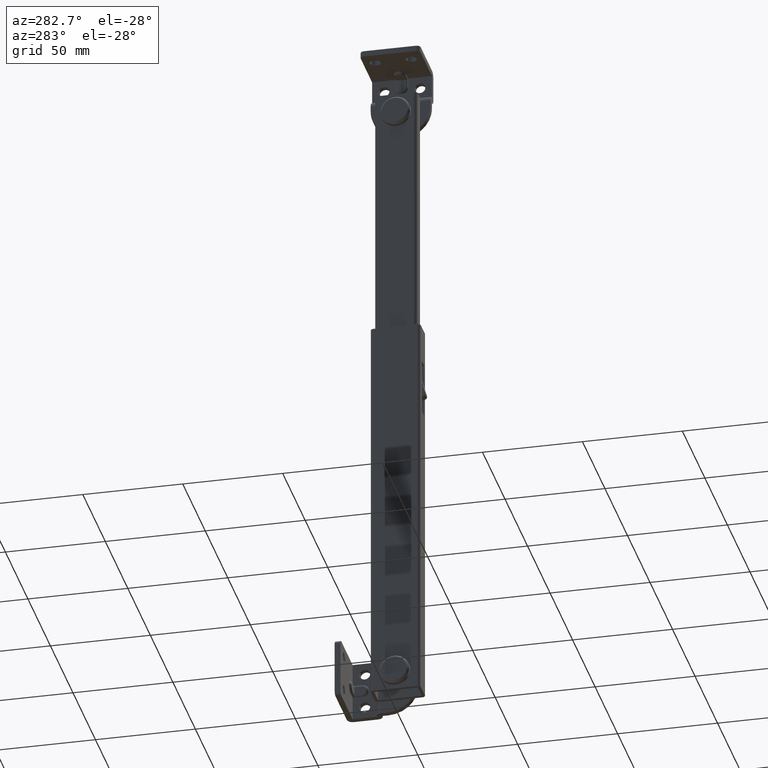
[diagram: clean part render]
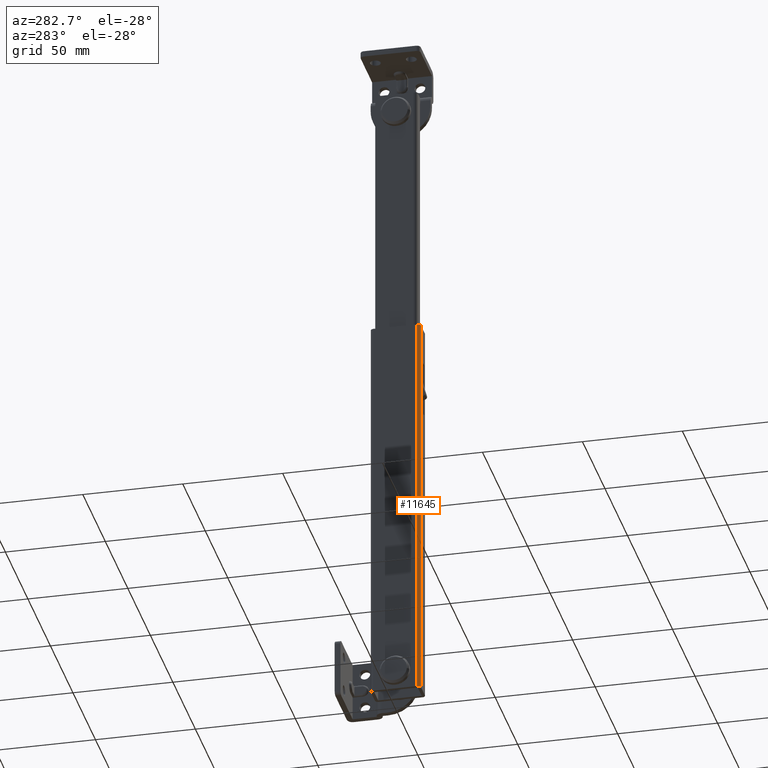
[diagram: same view with one face highlighted and labeled with its STEP entity id]
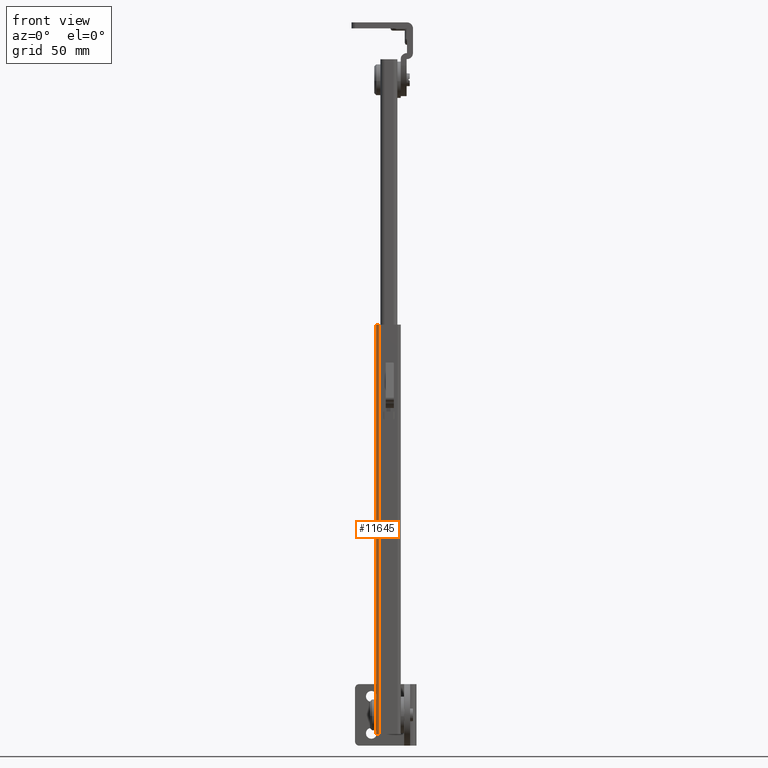
[diagram: same view with one face highlighted and labeled with its STEP entity id]
A machine part, auxiliary view. The second image highlights one B-rep face of the part: STEP entity #11645.
A second angle (front view) of the same face is appended — the face is thin or edge-on in the first view.
In plain terms, the highlighted face is a freeform B-spline surface patch.
Its self-contained STEP definition (entity closure, byte-faithful):
#11366=CARTESIAN_POINT('',(1.597476178661950,-12.500000000000000,190.500000000000000));
#11367=VERTEX_POINT('',#11366);
#11436=CARTESIAN_POINT('',(0.0,-10.900002000000001,190.500000000000000));
#11437=VERTEX_POINT('',#11436);
#11443=CARTESIAN_POINT('',(0.0,-10.900002000000001,190.500000000000000));
#11444=CARTESIAN_POINT('',(0.000003000000000,-12.497474175502171,190.500000000000060));
#11445=CARTESIAN_POINT('',(1.597476178661950,-12.500000000000000,190.500000000000000));
#11453=(BOUNDED_CURVE()B_SPLINE_CURVE(2,(#11443,#11444,#11445),.UNSPECIFIED.,.F.,.U.)CURVE()GEOMETRIC_REPRESENTATION_ITEM()QUASI_UNIFORM_CURVE()RATIONAL_B_SPLINE_CURVE((1.0,0.707665577210126,1.0))REPRESENTATION_ITEM(''));
#11454=EDGE_CURVE('',#11437,#11367,#11453,.T.);
#11494=CARTESIAN_POINT('',(1.597476178661950,-12.500000000000000,-9.500000000000000));
#11495=VERTEX_POINT('',#11494);
#11503=CARTESIAN_POINT('',(0.0,-10.900002000000001,-9.500000000000000));
#11504=VERTEX_POINT('',#11503);
#11505=CARTESIAN_POINT('',(0.0,-10.900002000000001,-9.500000000000000));
#11506=CARTESIAN_POINT('',(0.000003000000000,-12.497474175502171,-9.500000000000000));
#11507=CARTESIAN_POINT('',(1.597476178661950,-12.500000000000000,-9.500000000000000));
#11515=(BOUNDED_CURVE()B_SPLINE_CURVE(2,(#11505,#11506,#11507),.UNSPECIFIED.,.F.,.U.)CURVE()GEOMETRIC_REPRESENTATION_ITEM()QUASI_UNIFORM_CURVE()RATIONAL_B_SPLINE_CURVE((1.0,0.707665577210126,1.0))REPRESENTATION_ITEM(''));
#11516=EDGE_CURVE('',#11504,#11495,#11515,.T.);
#11617=CARTESIAN_POINT('',(1.611438714334121,-12.499961153554541,-14.500000000000011));
#11618=CARTESIAN_POINT('',(1.611438714334121,-12.499961153554541,195.625000000000000));
#11619=CARTESIAN_POINT('',(-0.074566442943002,-12.512008720697851,-14.500000000000011));
#11620=CARTESIAN_POINT('',(-0.074566442943002,-12.512008720697851,195.625000000000030));
#11621=CARTESIAN_POINT('',(0.001641192822378,-10.827683653945540,-14.500000000000011));
#11622=CARTESIAN_POINT('',(0.001641192822378,-10.827683653945540,195.625000000000000));
#11630=(BOUNDED_SURFACE()B_SPLINE_SURFACE(1,2,((#11617,#11619,#11621),(#11618,#11620,#11622)),.UNSPECIFIED.,.F.,.F.,.U.)B_SPLINE_SURFACE_WITH_KNOTS((2,2),(3,3),(0.0,210.125000000000000),(0.0,2.749656998187751),.UNSPECIFIED.)GEOMETRIC_REPRESENTATION_ITEM()RATIONAL_B_SPLINE_SURFACE(((1.0,0.688354575693754,1.0),(1.0,0.688354575693754,1.0)))REPRESENTATION_ITEM('')SURFACE());
#11631=ORIENTED_EDGE('',*,*,#11454,.F.);
#11632=CARTESIAN_POINT('',(0.0,-10.900002000000001,-9.500000000000000));
#11633=CARTESIAN_POINT('',(0.0,-10.900002000000001,190.500000000000000));
#11634=QUASI_UNIFORM_CURVE('',1,(#11632,#11633),.UNSPECIFIED.,.F.,.U.);
#11635=EDGE_CURVE('',#11504,#11437,#11634,.T.);
#11636=ORIENTED_EDGE('',*,*,#11635,.F.);
#11637=ORIENTED_EDGE('',*,*,#11516,.T.);
#11638=CARTESIAN_POINT('',(1.597476178661950,-12.500000000000000,-9.500000000000000));
#11639=CARTESIAN_POINT('',(1.597476178661950,-12.500000000000000,190.500000000000000));
#11640=QUASI_UNIFORM_CURVE('',1,(#11638,#11639),.UNSPECIFIED.,.F.,.U.);
#11641=EDGE_CURVE('',#11495,#11367,#11640,.T.);
#11642=ORIENTED_EDGE('',*,*,#11641,.T.);
#11643=EDGE_LOOP('',(#11631,#11636,#11637,#11642));
#11644=FACE_OUTER_BOUND('',#11643,.T.);
#11645=ADVANCED_FACE('',(#11644),#11630,.T.);